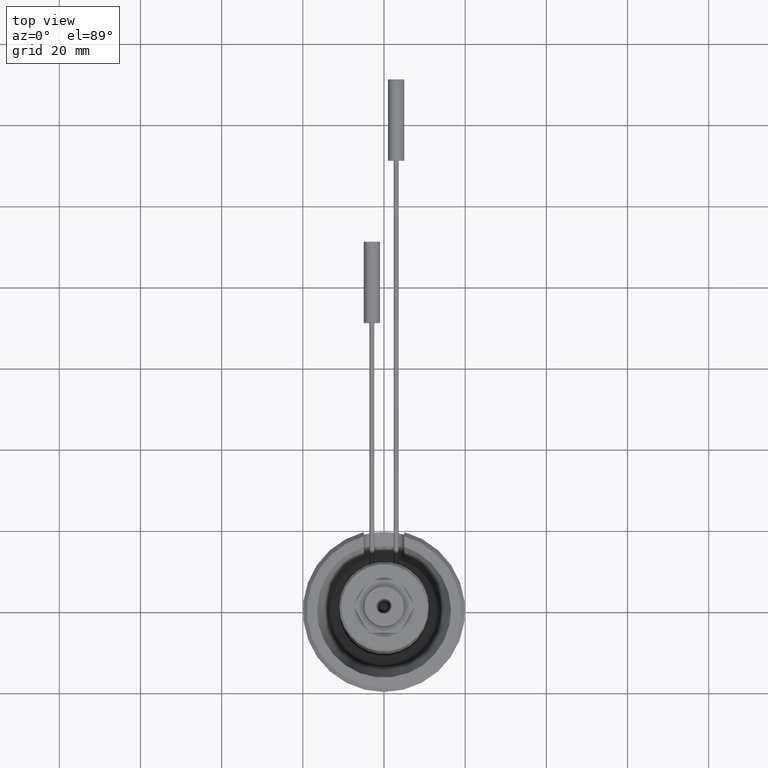
[diagram: clean part render]
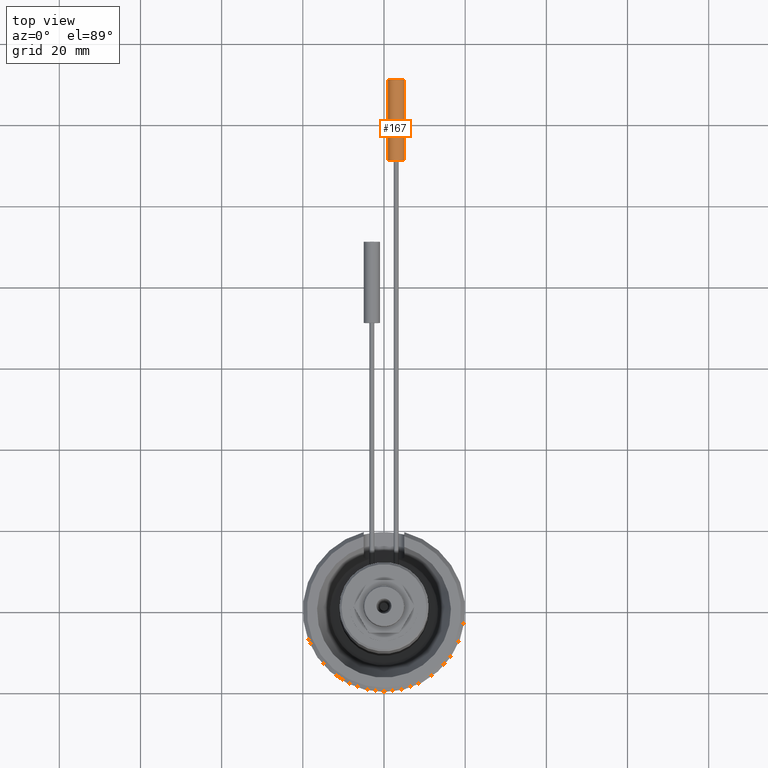
[diagram: same view with one face highlighted and labeled with its STEP entity id]
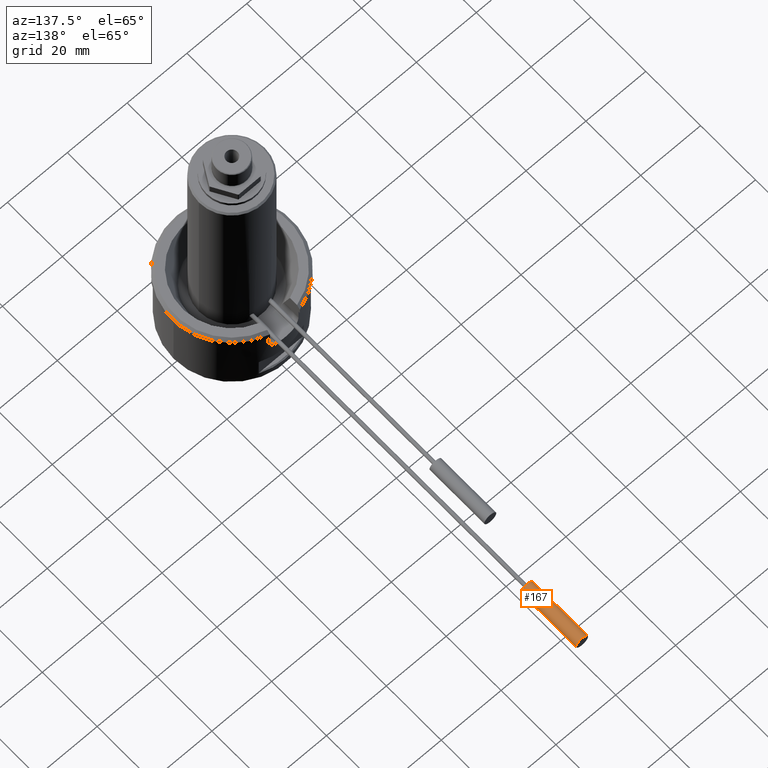
[diagram: same view with one face highlighted and labeled with its STEP entity id]
A machine part, top view. The second image highlights one B-rep face of the part: STEP entity #167.
A second angle (auxiliary view) of the same face is appended — the face is thin or edge-on in the first view.
In plain terms, the highlighted cylindrical surface (bore or boss wall) has radius 2 mm, axis along (0, -1, 0).
Its self-contained STEP definition (entity closure, byte-faithful):
#85=CYLINDRICAL_SURFACE('',#1050,2.);
#167=ADVANCED_FACE('',(#350,#351),#85,.T.);
#350=FACE_BOUND('',#430,.T.);
#351=FACE_BOUND('',#431,.T.);
#430=EDGE_LOOP('',(#625));
#431=EDGE_LOOP('',(#626));
#625=ORIENTED_EDGE('',*,*,#896,.F.);
#626=ORIENTED_EDGE('',*,*,#897,.T.);
#778=VERTEX_POINT('',#1819);
#779=VERTEX_POINT('',#1821);
#896=EDGE_CURVE('',#778,#778,#950,.T.);
#897=EDGE_CURVE('',#779,#779,#951,.T.);
#950=CIRCLE('',#1048,2.);
#951=CIRCLE('',#1049,2.);
#1048=AXIS2_PLACEMENT_3D('',#1818,#1306,#1307);
#1049=AXIS2_PLACEMENT_3D('',#1820,#1308,#1309);
#1050=AXIS2_PLACEMENT_3D('',#1822,#1310,#1311);
#1306=DIRECTION('',(0.,1.,0.));
#1307=DIRECTION('',(1.,0.,0.));
#1308=DIRECTION('',(0.,1.,0.));
#1309=DIRECTION('',(1.,0.,0.));
#1310=DIRECTION('',(0.,-1.,0.));
#1311=DIRECTION('',(0.,0.,-1.));
#1818=CARTESIAN_POINT('',(3.,131.,18.5));
#1819=CARTESIAN_POINT('',(5.,131.,18.5));
#1820=CARTESIAN_POINT('',(3.,111.,18.5));
#1821=CARTESIAN_POINT('',(5.,111.,18.5));
#1822=CARTESIAN_POINT('',(3.,131.,18.5));